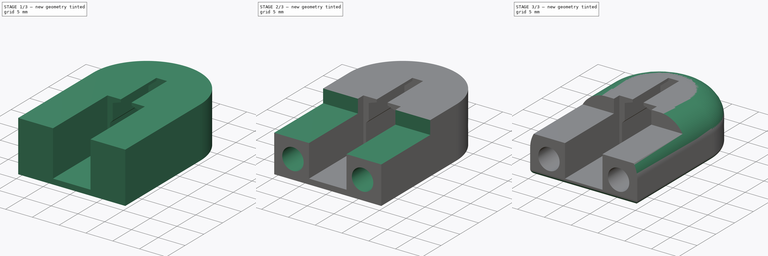
[diagram: build sequence overview — one tinted view per stage of 3, left to right]
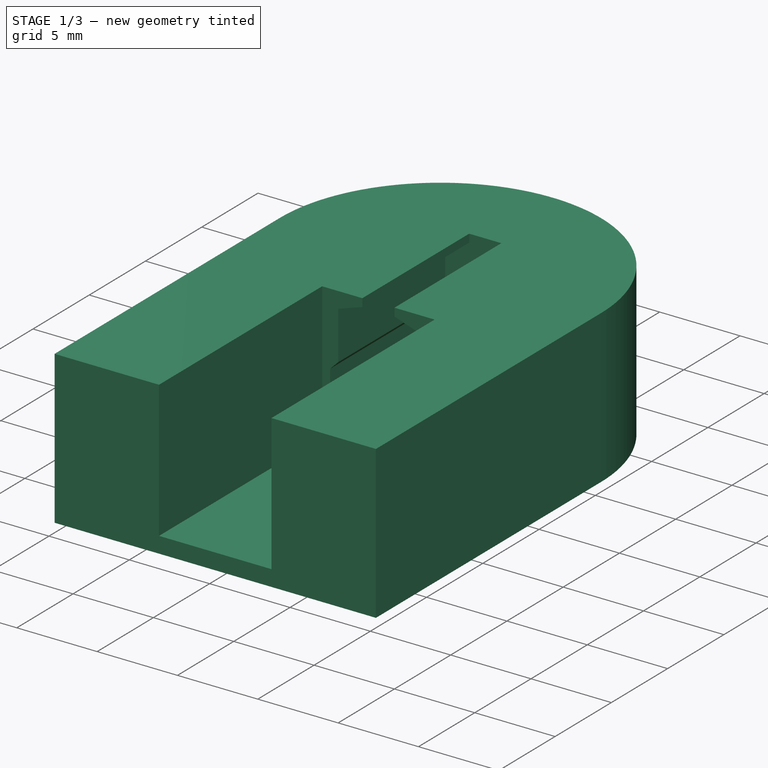
[diagram: stage 1 of 3 — iso view after this stage's code; geometry added in this stage tinted green]
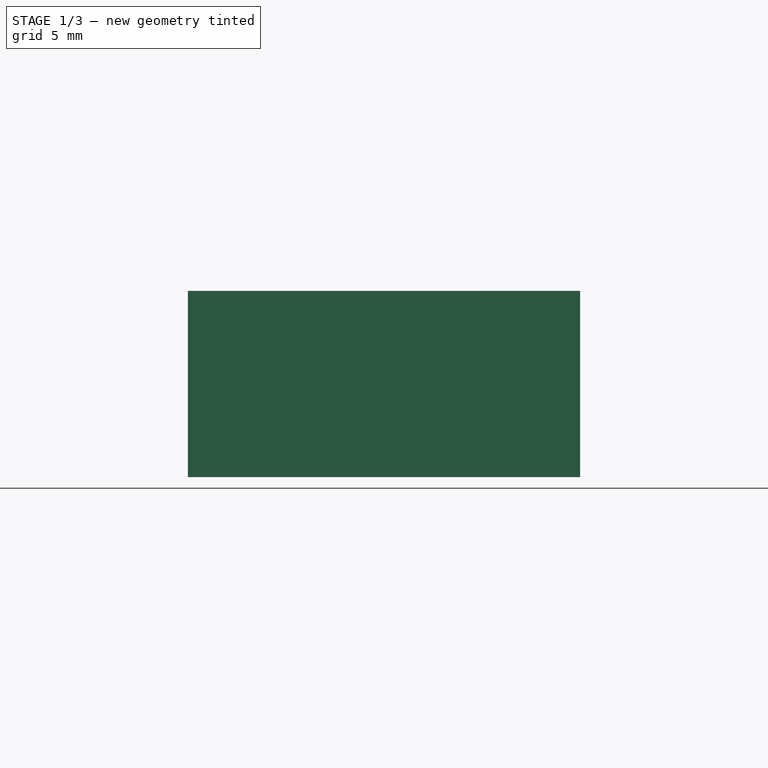
[diagram: stage 1 of 3 — front view after this stage's code; geometry added in this stage tinted green]
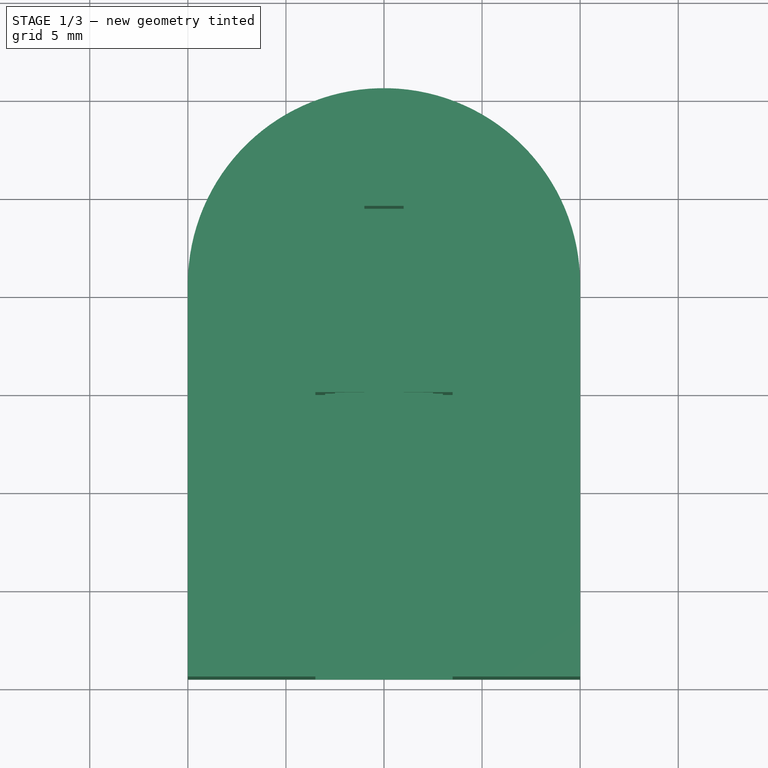
[diagram: stage 1 of 3 — top view after this stage's code; geometry added in this stage tinted green]
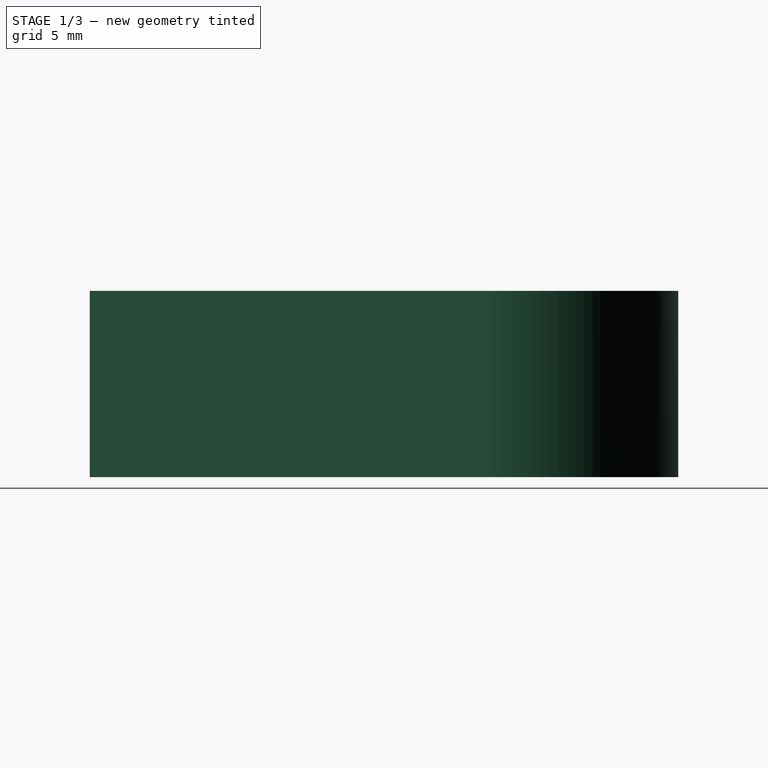
[diagram: stage 1 of 3 — right view after this stage's code; geometry added in this stage tinted green]
FCSTD DOCUMENT  (FreeCAD 0.17R13541 (Git))
Label: ALPS_button
License: All rights reserved
LicenseURL: http://en.wikipedia.org/wiki/All_rights_reserved
objects: Sketcher::SketchObject×5, PartDesign::Pocket×4, PartDesign::Fillet×2, PartDesign::Pad×1, PartDesign::SubtractiveTorus×1, PartDesign::Body×1
note: 20 computed .brp shape members not serialized (recipe doc carries the construction recipe); baked Part::Feature solids carry a one-line shape summary decoded from their .brp

FEATURE [Sketcher::SketchObject] Sketch  label="SPVF140100_base"
  AttachmentOffset = pos=(0,1,0) rot=(0,0,1;0rad)
  MapMode = 5
  Placement = pos=(0,0,1) rot=(1,0,0;1.5708rad)
  Support = -> [XZ_Plane]
  sketch-geometry (12):
    g0: LineSegment StartX=-3 StartY=0 StartZ=0 EndX=3 EndY=0 EndZ=0
    g1: LineSegment StartX=3 StartY=0 StartZ=0 EndX=3 EndY=4 EndZ=0
    g2: LineSegment StartX=3 StartY=4 StartZ=0 EndX=2.5 EndY=4.5 EndZ=0
    g3: LineSegment StartX=2.5 StartY=4.5 StartZ=0 EndX=2.5 EndY=7.5 EndZ=0
    g4: LineSegment StartX=2.5 StartY=7.5 StartZ=0 EndX=1 EndY=8 EndZ=0
    g5: LineSegment StartX=1 StartY=8 StartZ=0 EndX=1 EndY=11.5 EndZ=0
    g6: LineSegment StartX=1 StartY=11.5 StartZ=0 EndX=-1 EndY=11.5 EndZ=0
    g7: LineSegment StartX=-1 StartY=11.5 StartZ=0 EndX=-1 EndY=8 EndZ=0
    g8: LineSegment StartX=-1 StartY=8 StartZ=0 EndX=-2.5 EndY=7.5 EndZ=0
    g9: LineSegment StartX=-2.5 StartY=7.5 StartZ=0 EndX=-2.5 EndY=4.5 EndZ=0
    g10: LineSegment StartX=-2.5 StartY=4.5 StartZ=0 EndX=-3 EndY=4 EndZ=0
    g11: LineSegment StartX=-3 StartY=4 StartZ=0 EndX=-3 EndY=0 EndZ=0
  constraints (10):
    c: Coincident(g0,g1)
    c: Coincident(g1,g2)
    c: Coincident(g2,g3)
    c: Coincident(g3,g4)
    c: Coincident(g4,g5)
    c: Coincident(g6,g7)
    c: Coincident(g7,g8)
    c: Coincident(g8,g9)
    c: Coincident(g9,g10)
    c: Coincident(g10,g11)
FEATURE [Sketcher::SketchObject] Sketch001
  MapMode = 5
  Support = -> [XY_Plane]
  sketch-geometry (6):
    g0: LineSegment StartX=10 StartY=1.47522 StartZ=0 EndX=10 EndY=-14.5 EndZ=0
    g1: LineSegment StartX=10 StartY=-14.5 StartZ=0 EndX=-10 EndY=-14.5 EndZ=0
    g2: LineSegment StartX=-10 StartY=-14.5 StartZ=0 EndX=-10 EndY=1.5 EndZ=0
    g3: LineSegment StartX=10 StartY=5.5 StartZ=0 EndX=10 EndY=1.47522 EndZ=0
    g4: LineSegment StartX=-10 StartY=5.5 StartZ=0 EndX=-10 EndY=1.5 EndZ=0
    g5: ArcOfCircle CenterX=0 CenterY=5.5 CenterZ=0 NormalX=0 NormalY=0 NormalZ=1 AngleXU=0 Radius=10 StartAngle=6.812e-09 EndAngle=3.14159
  constraints (9):
    c: Coincident(g0,g1)
    c: Coincident(g1,g2)
    c: Horizontal(g1)
    c: Vertical(g0)
    c: Vertical(g2)
    c: Coincident(g0,g3)
    c: Coincident(g2,g4)
    c: Coincident(g5,g3)
    c: Coincident(g5,g4)
FEATURE [PartDesign::Pad] Pad
  Length = 9.5
  Length2 = 100
  Profile = -> Sketch001
  Type = 0
FEATURE [PartDesign::Pocket] Pocket
  BaseFeature = -> Pad
  Length = 9.5
  Length2 = 100
  Profile = -> Sketch
  Type = 0
FEATURE [Sketcher::SketchObject] Sketch002
  AttachmentOffset = pos=(0,0,1) rot=(0,0,1;0rad)
  MapMode = 5
  Placement = pos=(0,0,1) rot=(0,0,1;0rad)
  Support = -> [XY_Plane]
  sketch-geometry (4):
    g0: LineSegment StartX=-3.5 StartY=0 StartZ=0 EndX=3.5 EndY=0 EndZ=0
    g1: LineSegment StartX=3.5 StartY=0 StartZ=0 EndX=3.5 EndY=-15 EndZ=0
    g2: LineSegment StartX=3.5 StartY=-15 StartZ=0 EndX=-3.5 EndY=-15 EndZ=0
    g3: LineSegment StartX=-3.5 StartY=-15 StartZ=0 EndX=-3.5 EndY=0 EndZ=0
  constraints (8):
    c: Coincident(g0,g1)
    c: Coincident(g1,g2)
    c: Coincident(g2,g3)
    c: Coincident(g3,g0)
    c: Horizontal(g0)
    c: Horizontal(g2)
    c: Vertical(g1)
    c: Vertical(g3)
FEATURE [PartDesign::Pocket] Pocket001
  BaseFeature = -> Pocket
  Length = 11
  Length2 = 100
  Profile = -> Sketch002
  Reversed = true
  Type = 0
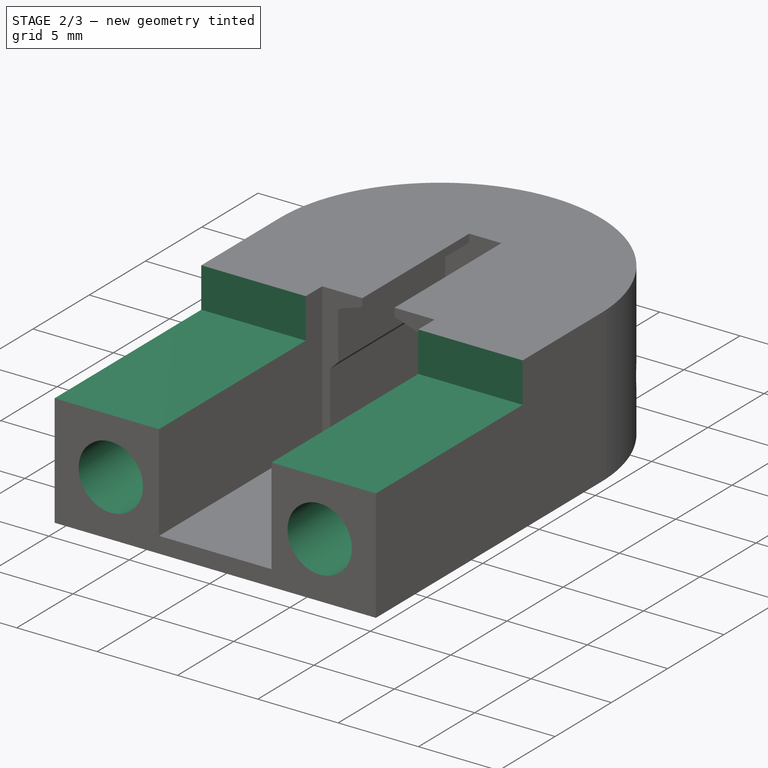
[diagram: stage 2 of 3 — iso view after this stage's code; geometry added in this stage tinted green]
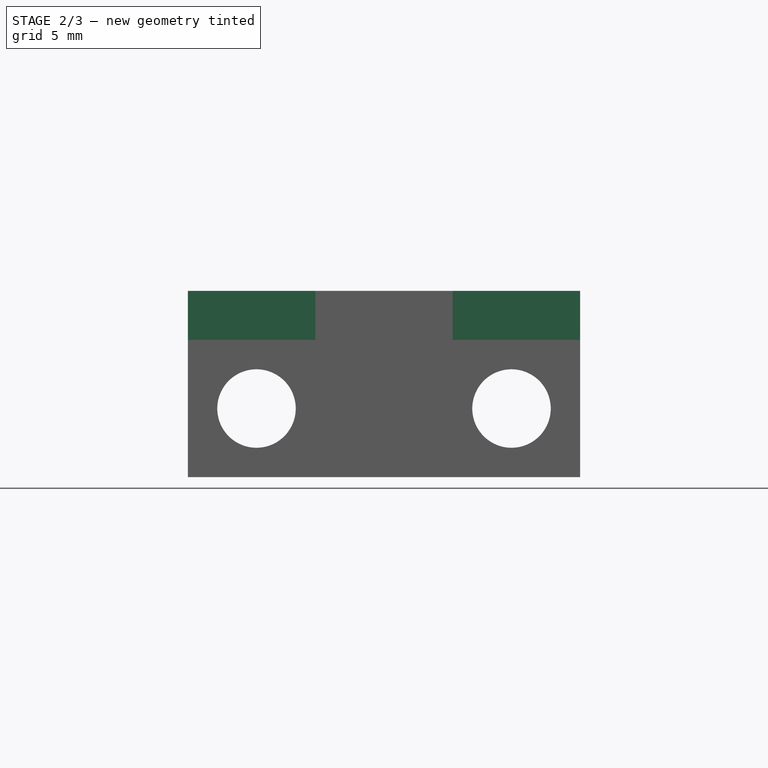
[diagram: stage 2 of 3 — front view after this stage's code; geometry added in this stage tinted green]
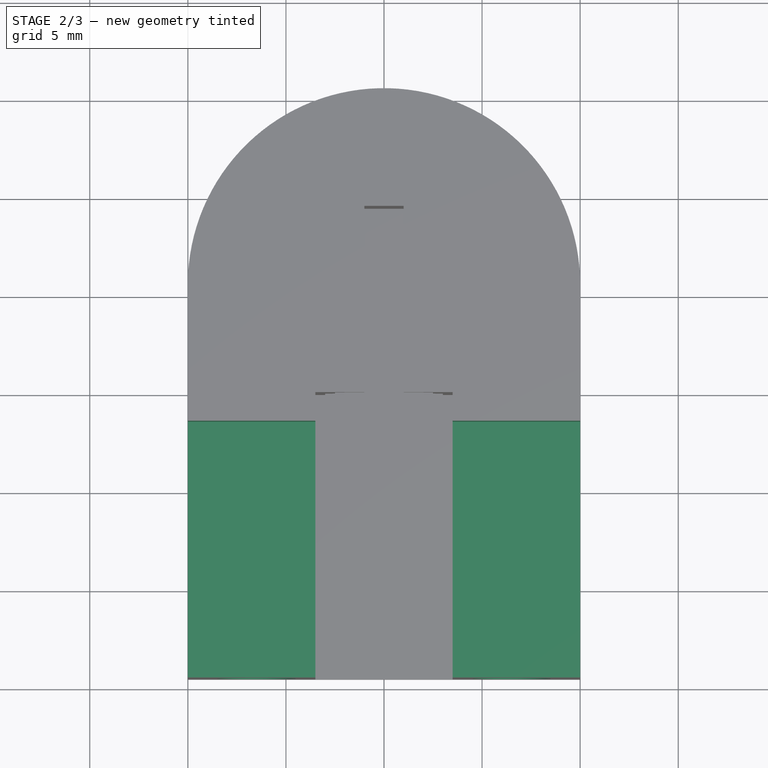
[diagram: stage 2 of 3 — top view after this stage's code; geometry added in this stage tinted green]
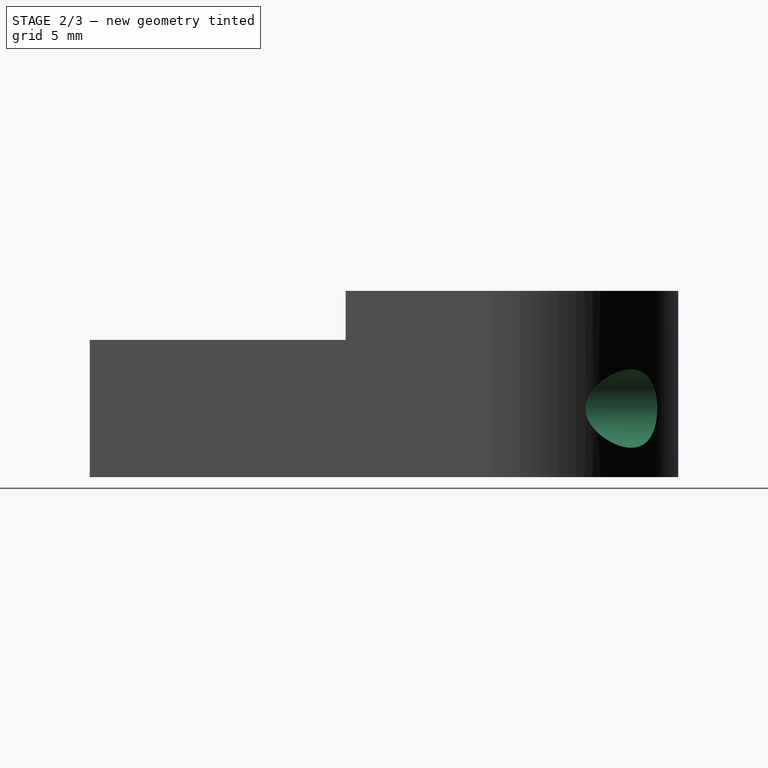
[diagram: stage 2 of 3 — right view after this stage's code; geometry added in this stage tinted green]
FEATURE [Sketcher::SketchObject] Sketch003
  MapMode = 5
  Placement = pos=(0,0,0) rot=(1,0,0;1.5708rad)
  Support = -> [XZ_Plane]
  sketch-geometry (2):
    g0: Circle CenterX=6.5 CenterY=3.5 CenterZ=0 NormalX=0 NormalY=0 NormalZ=1 AngleXU=0 Radius=2
    g1: Circle CenterX=-6.5 CenterY=3.5 CenterZ=0 NormalX=0 NormalY=0 NormalZ=1 AngleXU=0 Radius=2
FEATURE [PartDesign::Pocket] Pocket002
  BaseFeature = -> Pocket001
  Length = 43
  Length2 = 100
  Midplane = true
  Profile = -> Sketch003
  Reversed = true
  Type = 0
FEATURE [Sketcher::SketchObject] Sketch004
  AttachmentOffset = pos=(0,0,7) rot=(0,0,1;0rad)
  MapMode = 5
  Placement = pos=(0,0,7) rot=(0,0,1;0rad)
  Support = -> [XY_Plane]
  sketch-geometry (4):
    g0: LineSegment StartX=-11.7075 StartY=-14.9574 StartZ=0 EndX=12 EndY=-14.9574 EndZ=0
    g1: LineSegment StartX=12 StartY=-14.9574 StartZ=0 EndX=12 EndY=-1.4574 EndZ=0
    g2: LineSegment StartX=12 StartY=-1.4574 StartZ=0 EndX=-11.7075 EndY=-1.4574 EndZ=0
    g3: LineSegment StartX=-11.7075 StartY=-1.4574 StartZ=0 EndX=-11.7075 EndY=-14.9574 EndZ=0
  constraints (8):
    c: Coincident(g0,g1)
    c: Coincident(g1,g2)
    c: Coincident(g2,g3)
    c: Coincident(g3,g0)
    c: Horizontal(g0)
    c: Horizontal(g2)
    c: Vertical(g1)
    c: Vertical(g3)
FEATURE [PartDesign::Pocket] Pocket003
  BaseFeature = -> Pocket002
  Length = 5
  Length2 = 100
  Profile = -> Sketch004
  Reversed = true
  Type = 0
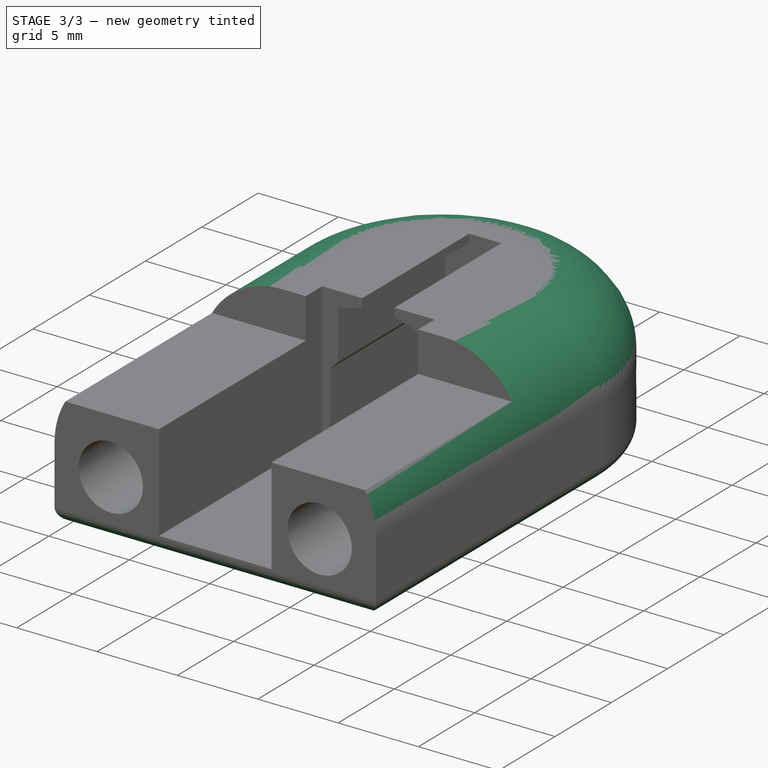
[diagram: stage 3 of 3 — iso view after this stage's code; geometry added in this stage tinted green]
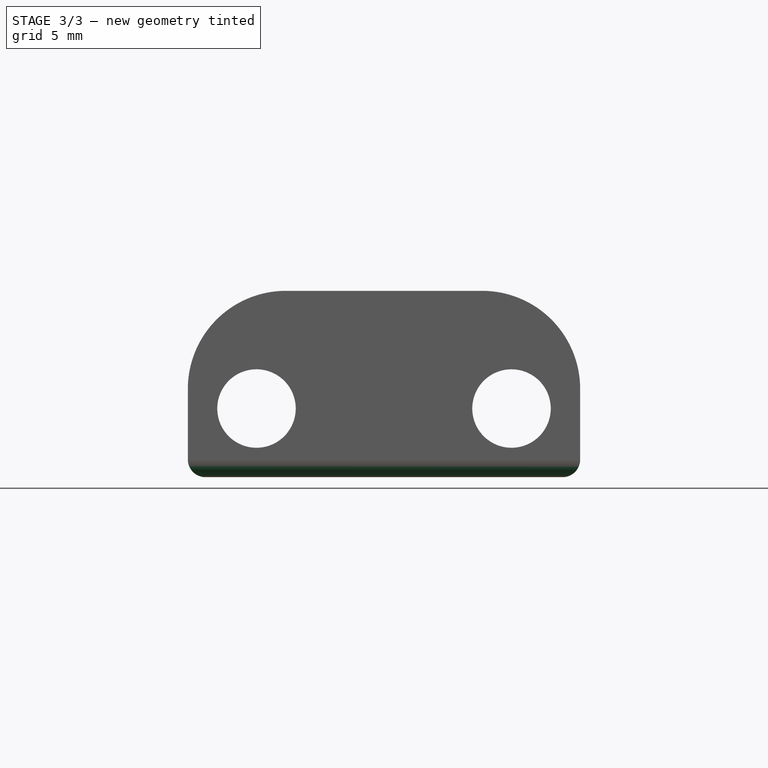
[diagram: stage 3 of 3 — front view after this stage's code; geometry added in this stage tinted green]
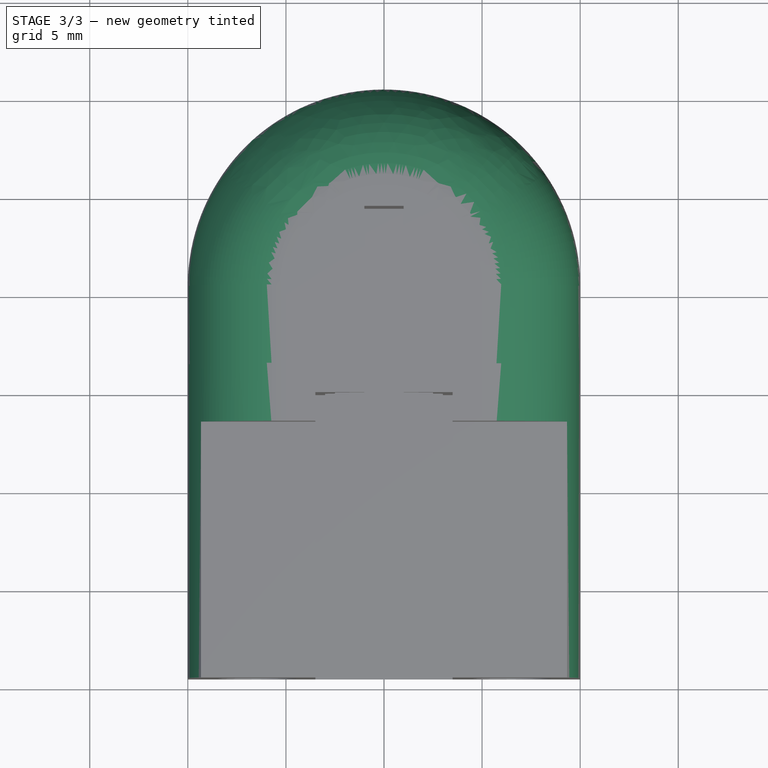
[diagram: stage 3 of 3 — top view after this stage's code; geometry added in this stage tinted green]
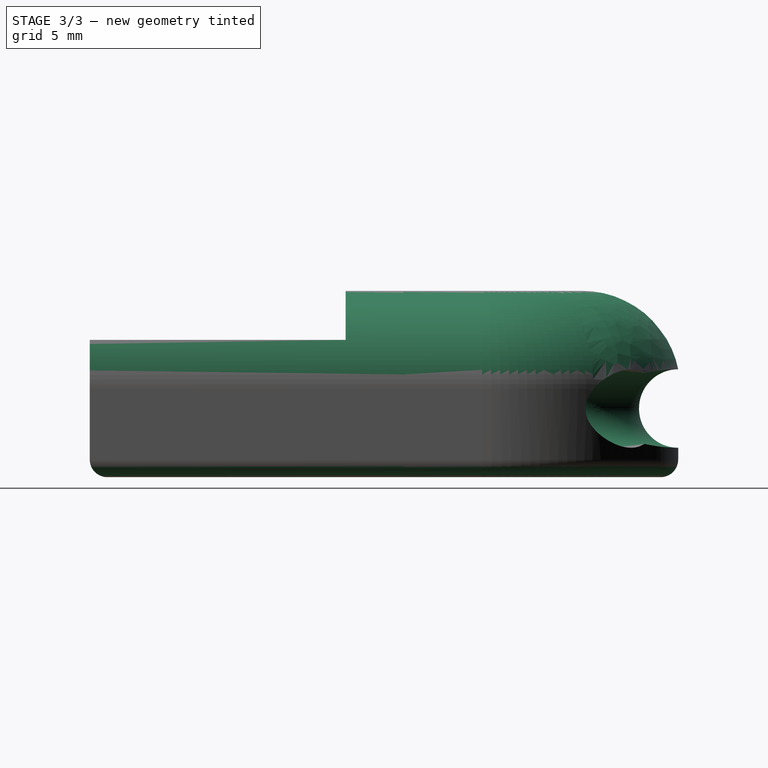
[diagram: stage 3 of 3 — right view after this stage's code; geometry added in this stage tinted green]
FEATURE [PartDesign::SubtractiveTorus] Torus
  Angle1 = -180
  Angle2 = 180
  Angle3 = 180
  AttacherType = Attacher::AttachEngine3D
  AttachmentOffset = pos=(0,9,3.5) rot=(0,0,1;0rad)
  BaseFeature = -> Pocket003
  MapMode = 5
  Placement = pos=(0,9,3.5) rot=(0,0,1;0rad)
  Radius1 = 6.5
  Radius2 = 2
  Support = -> [XY_Plane]
FEATURE [PartDesign::Fillet] Fillet
  Base = -> Torus [Edge24]
  BaseFeature = -> Torus
  Placement = pos=(0,9,3.5) rot=(0,0,1;0rad)
  Radius = 5
FEATURE [PartDesign::Fillet] Fillet001  label="ALPS_Button"
  Base = -> Fillet [Face4]
  BaseFeature = -> Fillet
  Placement = pos=(0,9,3.5) rot=(0,0,1;0rad)
  Radius = 0.9
FEATURE [PartDesign::Body] Body
  Group = -> [Sketch,Sketch001,Pad,Pocket,Sketch002,Pocket001,Sketch003,Pocket002,Sketch004,Pocket003,Torus,Fillet,Fillet001]
  Origin = -> Origin
  Tip = -> Fillet001
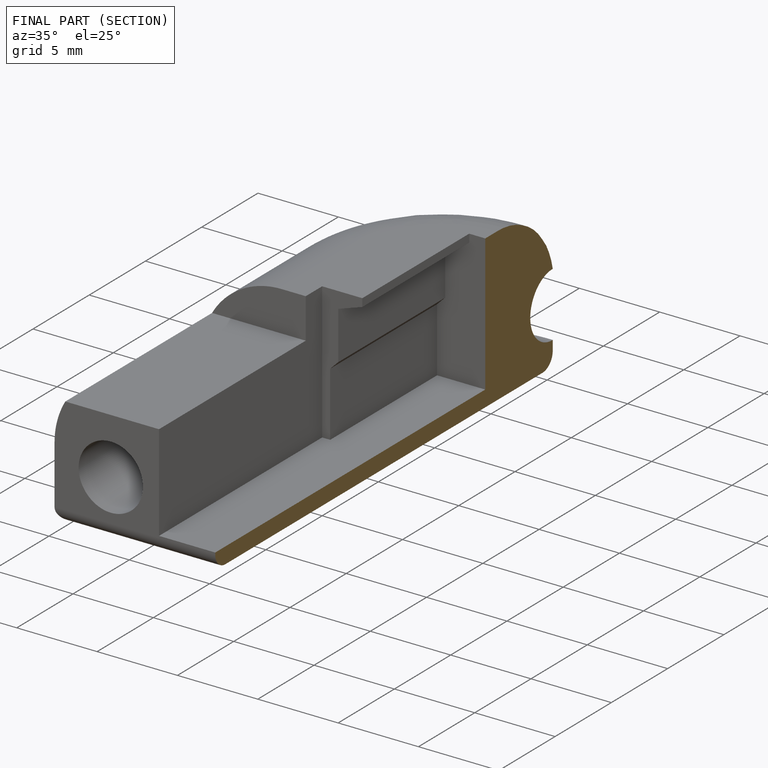
[diagram: finished part — half-section view (interior)]
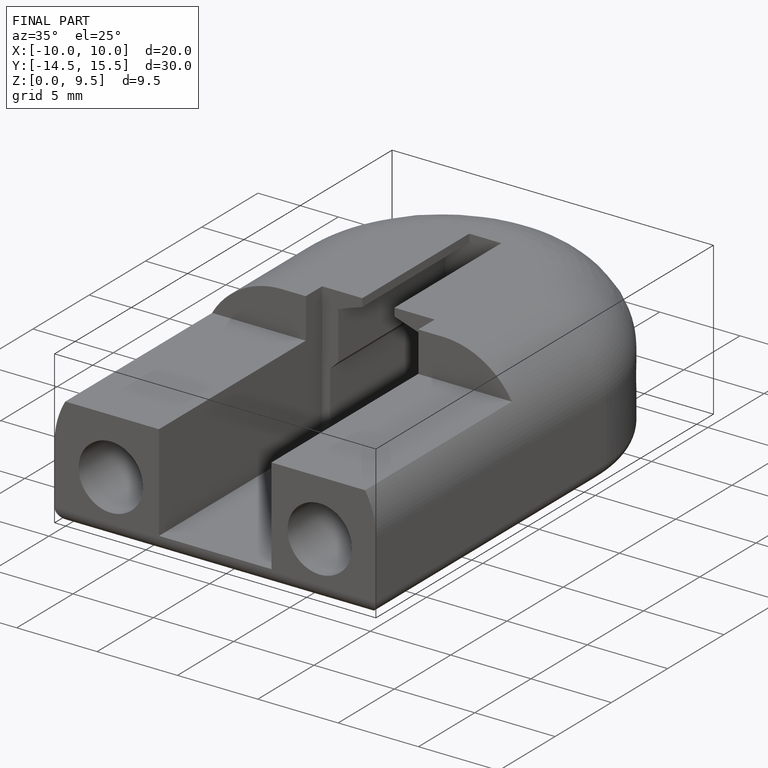
[diagram: finished part — iso view with bounding-box wireframe]
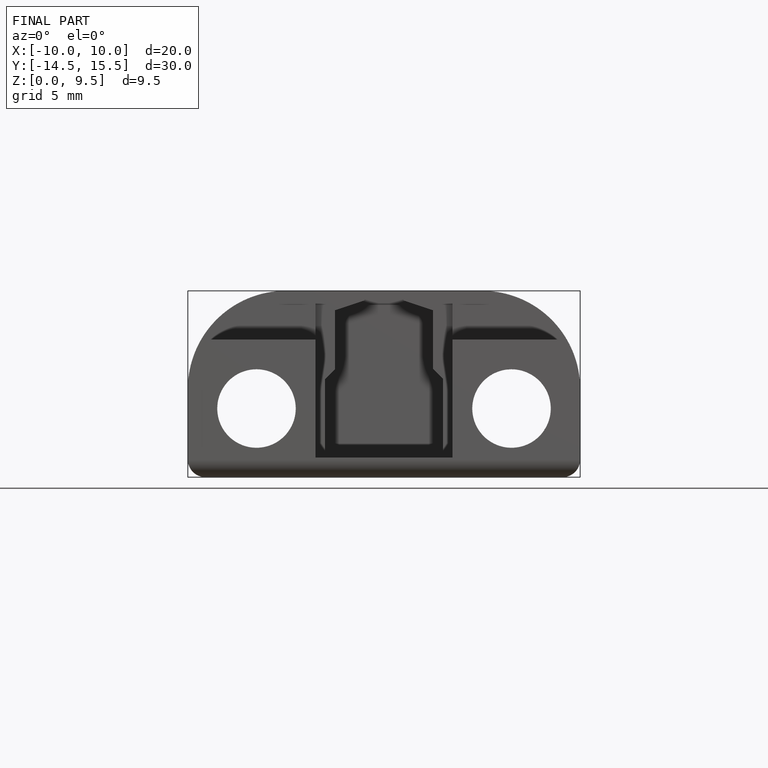
[diagram: finished part — front view with bounding-box wireframe]
